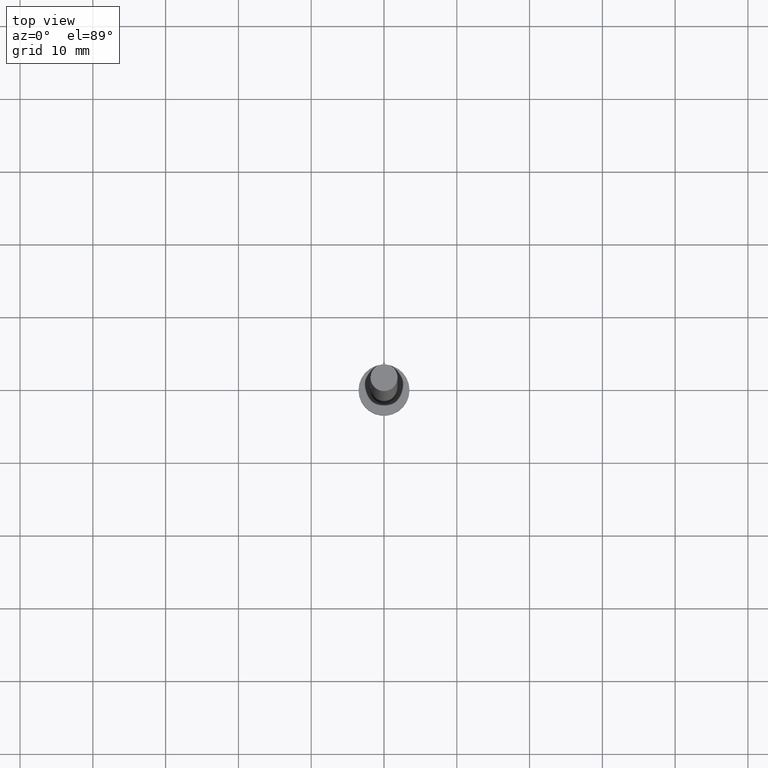
[diagram: clean part render]
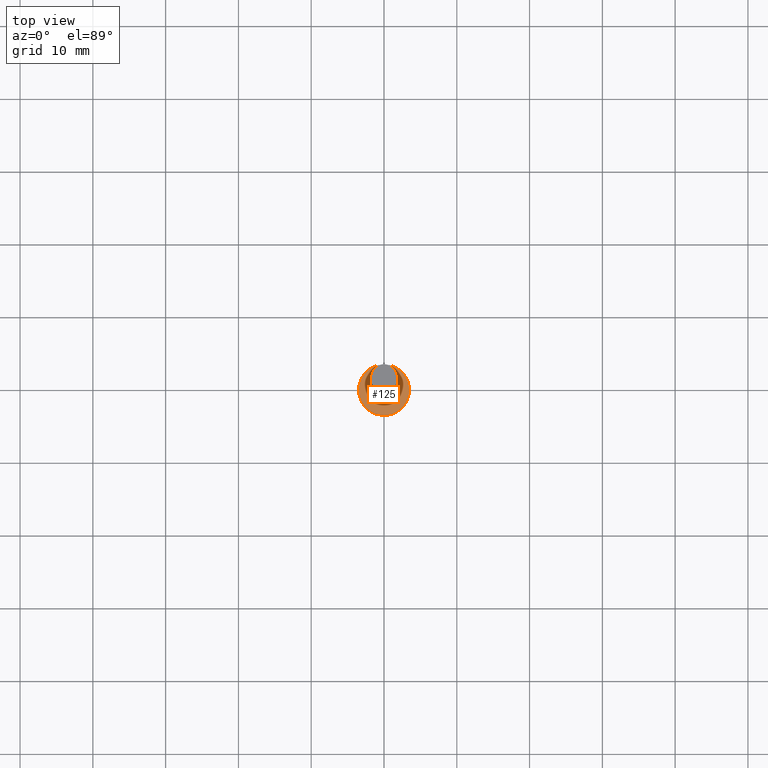
[diagram: same view with one face highlighted and labeled with its STEP entity id]
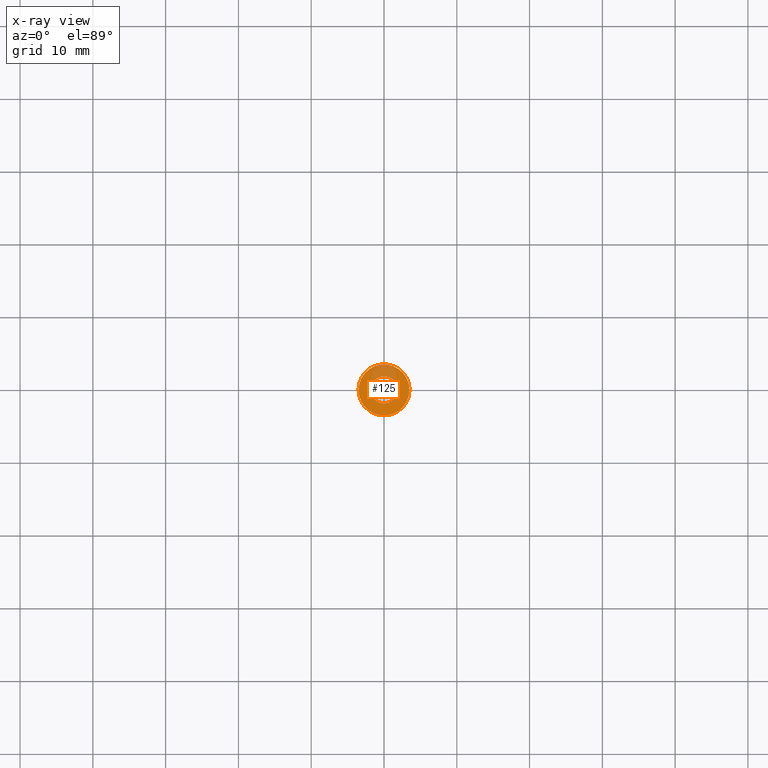
[diagram: x-ray of the same camera — body ghosted, the highlighted face saturated]
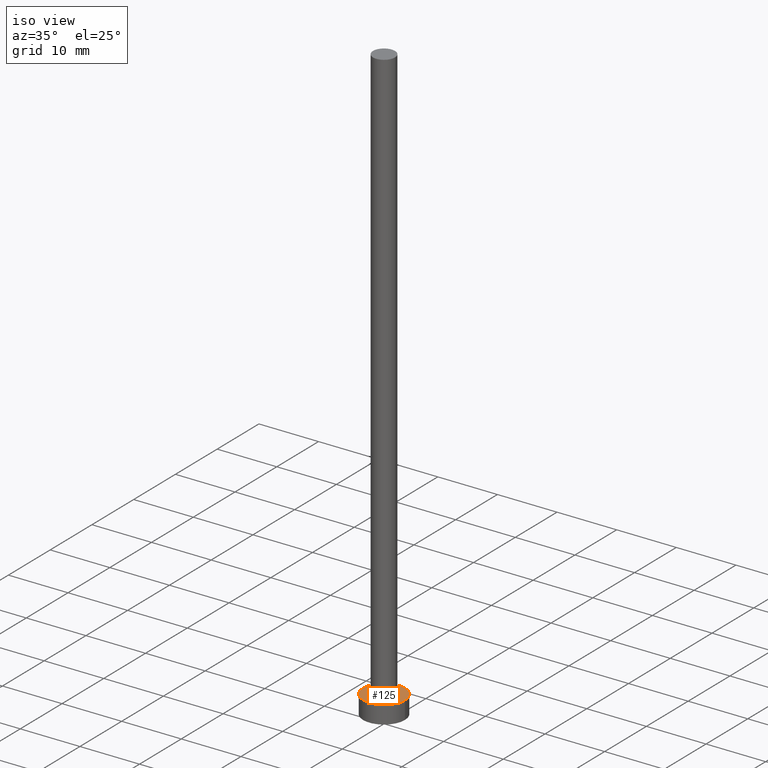
[diagram: same view with one face highlighted and labeled with its STEP entity id]
A machine part, top view. The second image highlights one B-rep face of the part: STEP entity #125.
The next image is the same camera in x-ray: the body ghosted, the highlighted face saturated — about 23% of this face is hidden behind the body in this view.
A second angle (iso view) of the same face is appended — the face is thin or edge-on in the first view.
In plain terms, the highlighted planar face has unit normal (0, 0, 1).
Its self-contained STEP definition (entity closure, byte-faithful):
#5 = ORIENTED_EDGE ( 'NONE', *, *, #140, .T. ) ;
#7 = CIRCLE ( 'NONE', #154, 1.850000000000000089 ) ;
#10 = CARTESIAN_POINT ( 'NONE',  ( 0.000000000000000000, 0.000000000000000000, 3.000000000000000000 ) ) ;
#12 = FACE_BOUND ( 'NONE', #187, .T. ) ;
#14 = CIRCLE ( 'NONE', #211, 3.500000000000000444 ) ;
#24 = DIRECTION ( 'NONE',  ( 1.000000000000000000, 0.000000000000000000, 0.000000000000000000 ) ) ;
#25 = DIRECTION ( 'NONE',  ( 0.000000000000000000, 0.000000000000000000, 1.000000000000000000 ) ) ;
#49 = CARTESIAN_POINT ( 'NONE',  ( 0.000000000000000000, 0.000000000000000000, 3.000000000000000000 ) ) ;
#56 = DIRECTION ( 'NONE',  ( 1.000000000000000000, 0.000000000000000000, 0.000000000000000000 ) ) ;
#67 = CARTESIAN_POINT ( 'NONE',  ( -3.500000000000000444, 0.000000000000000000, 3.000000000000000000 ) ) ;
#75 = DIRECTION ( 'NONE',  ( 0.000000000000000000, 0.000000000000000000, 1.000000000000000000 ) ) ;
#82 = CARTESIAN_POINT ( 'NONE',  ( 0.000000000000000000, 0.000000000000000000, 3.000000000000000000 ) ) ;
#85 = VERTEX_POINT ( 'NONE', #252 ) ;
#86 = AXIS2_PLACEMENT_3D ( 'NONE', #49, #235, #234 ) ;
#88 = CARTESIAN_POINT ( 'NONE',  ( 0.000000000000000000, 0.000000000000000000, 3.000000000000000000 ) ) ;
#90 = CARTESIAN_POINT ( 'NONE',  ( 0.000000000000000000, 0.000000000000000000, 3.000000000000000000 ) ) ;
#102 = VERTEX_POINT ( 'NONE', #193 ) ;
#103 = EDGE_CURVE ( 'NONE', #166, #85, #14, .T. ) ;
#104 = CIRCLE ( 'NONE', #254, 1.850000000000000089 ) ;
#112 = AXIS2_PLACEMENT_3D ( 'NONE', #10, #75, #152 ) ;
#125 = ADVANCED_FACE ( 'NONE', ( #12, #158 ), #198, .T. ) ;
#132 = CARTESIAN_POINT ( 'NONE',  ( 1.850000000000000089, 2.265596578422602607E-16, 3.000000000000000000 ) ) ;
#137 = DIRECTION ( 'NONE',  ( 1.000000000000000000, 0.000000000000000000, 0.000000000000000000 ) ) ;
#140 = EDGE_CURVE ( 'NONE', #85, #166, #222, .T. ) ;
#152 = DIRECTION ( 'NONE',  ( 1.000000000000000000, 0.000000000000000000, -0.000000000000000000 ) ) ;
#154 = AXIS2_PLACEMENT_3D ( 'NONE', #88, #171, #137 ) ;
#158 = FACE_OUTER_BOUND ( 'NONE', #169, .T. ) ;
#159 = EDGE_CURVE ( 'NONE', #102, #167, #7, .T. ) ;
#165 = ORIENTED_EDGE ( 'NONE', *, *, #103, .T. ) ;
#166 = VERTEX_POINT ( 'NONE', #67 ) ;
#167 = VERTEX_POINT ( 'NONE', #132 ) ;
#169 = EDGE_LOOP ( 'NONE', ( #165, #5 ) ) ;
#171 = DIRECTION ( 'NONE',  ( 0.000000000000000000, 0.000000000000000000, 1.000000000000000000 ) ) ;
#172 = DIRECTION ( 'NONE',  ( 0.000000000000000000, 0.000000000000000000, 1.000000000000000000 ) ) ;
#187 = EDGE_LOOP ( 'NONE', ( #228, #239 ) ) ;
#193 = CARTESIAN_POINT ( 'NONE',  ( -1.850000000000000089, 0.000000000000000000, 3.000000000000000000 ) ) ;
#198 = PLANE ( 'NONE',  #112 ) ;
#211 = AXIS2_PLACEMENT_3D ( 'NONE', #90, #25, #56 ) ;
#222 = CIRCLE ( 'NONE', #86, 3.500000000000000444 ) ;
#227 = EDGE_CURVE ( 'NONE', #167, #102, #104, .T. ) ;
#228 = ORIENTED_EDGE ( 'NONE', *, *, #159, .F. ) ;
#234 = DIRECTION ( 'NONE',  ( 1.000000000000000000, 0.000000000000000000, 0.000000000000000000 ) ) ;
#235 = DIRECTION ( 'NONE',  ( 0.000000000000000000, 0.000000000000000000, 1.000000000000000000 ) ) ;
#239 = ORIENTED_EDGE ( 'NONE', *, *, #227, .F. ) ;
#252 = CARTESIAN_POINT ( 'NONE',  ( 3.500000000000000444, 4.286263797015737088E-16, 3.000000000000000000 ) ) ;
#254 = AXIS2_PLACEMENT_3D ( 'NONE', #82, #172, #24 ) ;